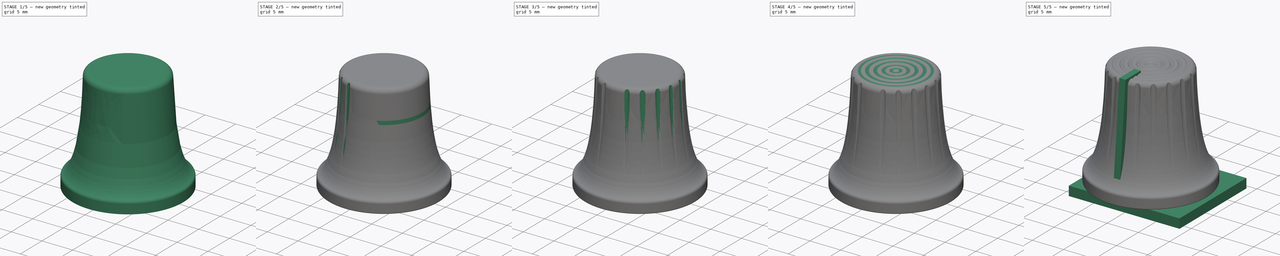
[diagram: build sequence overview — one tinted view per stage of 5, left to right]
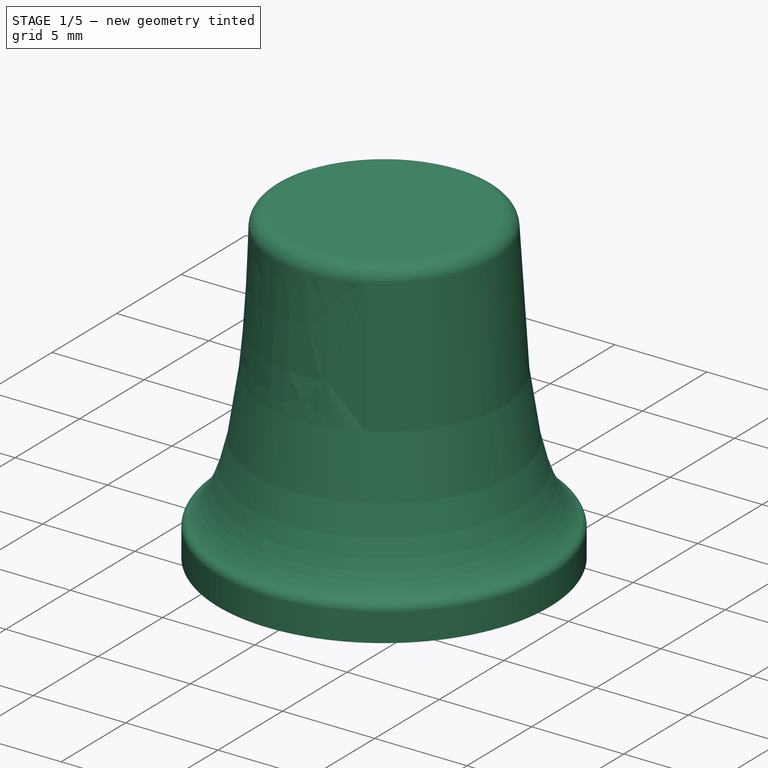
[diagram: stage 1 of 5 — iso view after this stage's code; geometry added in this stage tinted green]
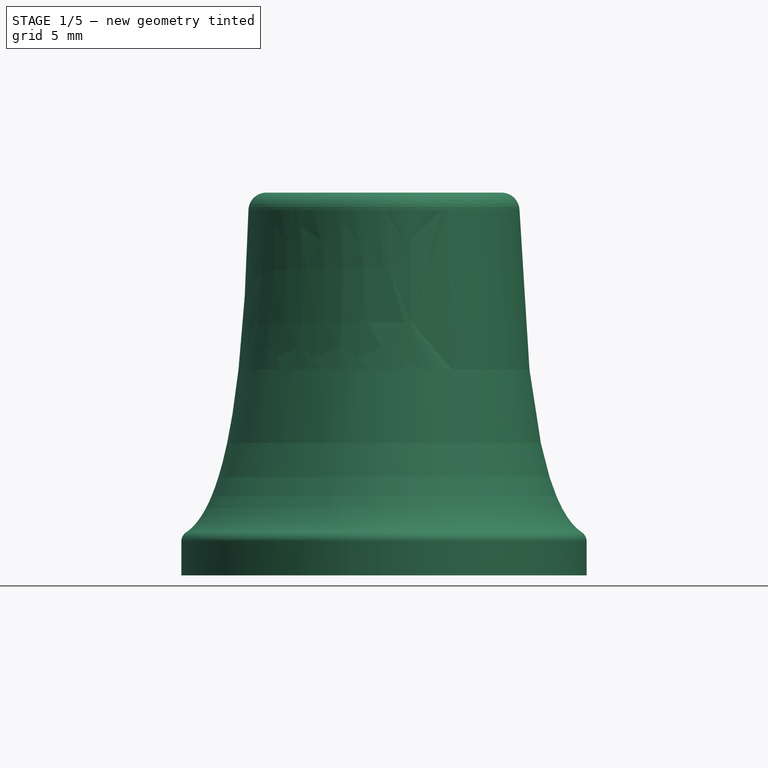
[diagram: stage 1 of 5 — front view after this stage's code; geometry added in this stage tinted green]
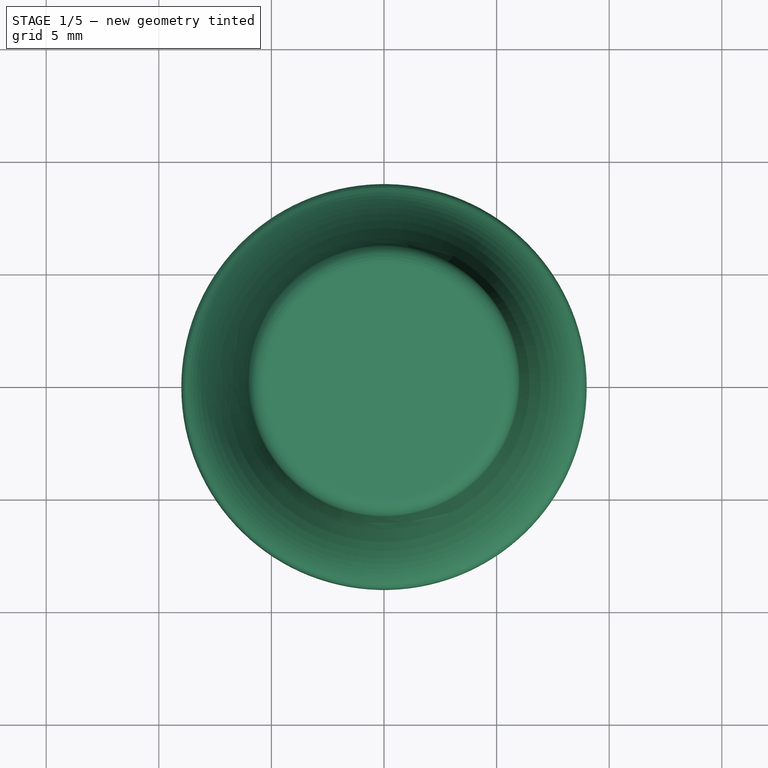
[diagram: stage 1 of 5 — top view after this stage's code; geometry added in this stage tinted green]
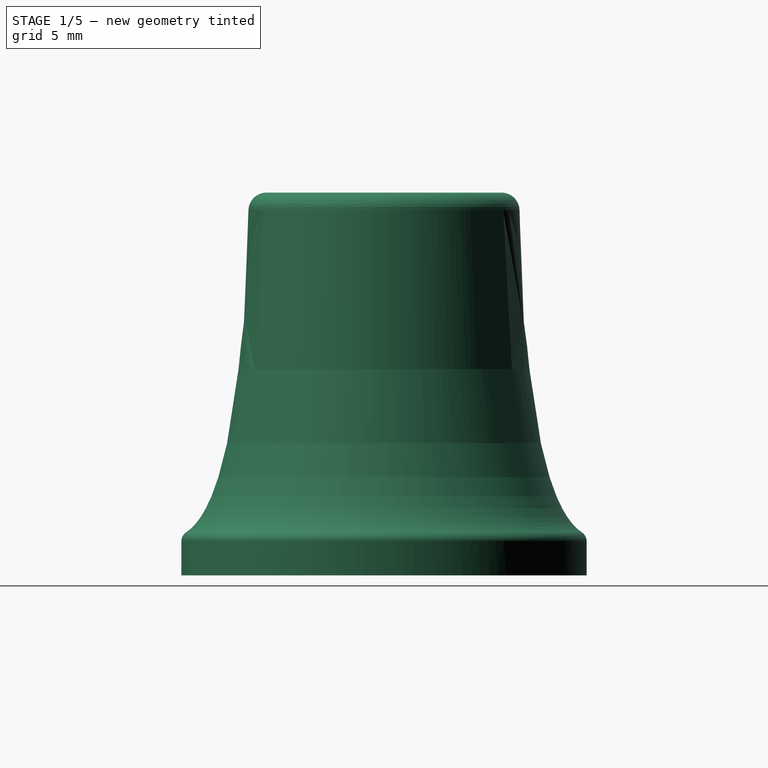
[diagram: stage 1 of 5 — right view after this stage's code; geometry added in this stage tinted green]
FCSTD DOCUMENT  (FreeCAD 0.19R19566 (Git))
Label: PotiCapV1_0
License: All rights reserved
LicenseURL: http://en.wikipedia.org/wiki/All_rights_reserved
objects: Sketcher::SketchObject×9, PartDesign::Pad×5, PartDesign::Plane×4, PartDesign::Fillet×4, PartDesign::Body×3, PartDesign::PolarPattern×3, Part::Feature×2, PartDesign::Groove×2, PartDesign::Revolution×1, PartDesign::Line×1, Part::MultiFuse×1
note: 43 computed .brp shape members not serialized (recipe doc carries the construction recipe); baked Part::Feature solids carry a one-line shape summary decoded from their .brp

FEATURE [Part::Feature] Part__Feature  label="RK09D1130-F20"
  Placement = pos=(0,0,6.5) rot=(1,0,0;3.14159rad)
  shape: bbox 11.45 x 12.65 x 25.3 mm, 332 faces (baked)
FEATURE [PartDesign::Plane] DatumPlane
  Length = 60
  MapMode = 2
  Placement = pos=(0,0,10) rot=(0,0,1;0rad)
  ResizeMode = 0
  Width = 60
FEATURE [PartDesign::Plane] DatumPlane001
  Length = 60
  MapMode = 2
  Placement = pos=(0,0,11.5) rot=(0,0,1;0rad)
  ResizeMode = 0
  Width = 60
FEATURE [Part::Feature] Part__Feature002  label="RK09D1130-F25"
  Placement = pos=(0,0,6.5) rot=(1,0,0;3.14159rad)
  shape: bbox 11.45 x 12.65 x 30.3 mm, 332 faces (baked)
FEATURE [Sketcher::SketchObject] Sketch
  MapMode = 5
  Placement = pos=(0,0,0) rot=(1,0,0;1.5708rad)
  Support = -> [XZ_Plane]
  sketch-geometry (20):
    g0: LineSegment [constr] StartX=0 StartY=28.8 StartZ=0 EndX=0 EndY=11.8 EndZ=0
    g1: LineSegment [constr] StartX=0 StartY=11.8 StartZ=0 EndX=-9 EndY=11.8 EndZ=0
    g2: LineSegment StartX=-9 StartY=11.8 StartZ=0 EndX=-9 EndY=13.6 EndZ=0
    g3: LineSegment StartX=0 StartY=28.8 StartZ=0 EndX=-6 EndY=28.8 EndZ=0
    g4: Circle [constr] CenterX=-6 CenterY=28.8 CenterZ=0 NormalX=0 NormalY=0 NormalZ=1 AngleXU=0 Radius=2
    g5: Circle [constr] CenterX=-6.3 CenterY=14.8 CenterZ=0 NormalX=0 NormalY=0 NormalZ=1 AngleXU=0 Radius=2
    g6: Circle [constr] CenterX=-9 CenterY=13.6 CenterZ=0 NormalX=0 NormalY=0 NormalZ=1 AngleXU=0 Radius=2
    g7: BSplineCurve PolesCount=3 KnotsCount=2 Degree=2 IsPeriodic=0
    g8: GeomPoint [constr] X=-6 Y=28.8 Z=0
    g9: GeomPoint [constr] X=-9 Y=13.6 Z=0
    g10: Circle [constr] CenterX=-4.6 CenterY=27.4 CenterZ=0 NormalX=0 NormalY=0 NormalZ=1 AngleXU=0 Radius=2
    g11: Circle [constr] CenterX=-5.087 CenterY=14.851 CenterZ=0 NormalX=0 NormalY=0 NormalZ=1 AngleXU=0 Radius=2
    g12: Circle [constr] CenterX=-7.5 CenterY=13.2 CenterZ=0 NormalX=0 NormalY=0 NormalZ=1 AngleXU=0 Radius=2
    g13: BSplineCurve PolesCount=3 KnotsCount=2 Degree=2 IsPeriodic=0
    g14: GeomPoint [constr] X=-4.6 Y=27.4 Z=0
    g15: GeomPoint [constr] X=-7.5 Y=13.2 Z=0
    g16: LineSegment StartX=-4.6 StartY=27.4 StartZ=0 EndX=0 EndY=27.4 EndZ=0
    g17: LineSegment StartX=-7.5 StartY=13.2 StartZ=0 EndX=-7.5 EndY=11.8 EndZ=0
    g18: LineSegment StartX=-9 StartY=11.8 StartZ=0 EndX=-7.5 EndY=11.8 EndZ=0
    g19: LineSegment StartX=0 StartY=28.8 StartZ=0 EndX=0 EndY=27.4 EndZ=0
  constraints (49):
    c: PointOnObject(g0,g-2)
    c: PointOnObject(g0,g-2)
    c: Coincident(g0,g1)
    c: Horizontal(g1)
    c: Coincident(g1,g2)
    c: Coincident(g0,g3)
    c: Horizontal(g3)
    c: DistanceY(g0,g0) = 17
    c: DistanceX(g1,g1) = 9
    c: DistanceY(g-1,g0) = 11.8
    c: Vertical(g2)
    c: Coincident(g7,g3)
    c: Radius(g4) = 2
    c: Equal(g4,g5)
    c: Equal(g4,g6)
    c: Coincident(g7,g2)
    c: InternalAlignment(g4,g7)
    c: InternalAlignment(g5,g7)
    c: InternalAlignment(g6,g7)
    c: InternalAlignment(g8,g7)
    c: InternalAlignment(g9,g7)
    c: DistanceY(g2,g2) = 1.8
    c: DistanceY(g0,g5) = 3
    c: DistanceX(g3,g3) = 6
    c: DistanceX(g5,g0) = 6.3
    c: Radius(g10) = 2
    c: Equal(g10,g11)
    c: Equal(g10,g12)
    c: InternalAlignment(g10,g13)
    c: InternalAlignment(g11,g13)
    c: InternalAlignment(g12,g13)
    c: InternalAlignment(g14,g13)
    c: InternalAlignment(g15,g13)
    c: Horizontal(g16)
    c: Coincident(g17,g13)
    c: Coincident(g18,g2)
    c: Coincident(g18,g17)
    c: Coincident(g19,g3)
    c: Coincident(g16,g19)
    c: Vertical(g19)
    c: Horizontal(g18)
    c: DistanceX(g18,g18) = 1.5
    c: DistanceY(g17,g17) = 1.4
    c: Vertical(g17)
    c: DistanceX(g3,g13) = 1.4
    c: DistanceY(g19,g19) = 1.4
    c: DistanceX(g11,g0) = 5.087
    c: DistanceY(g0,g11) = 3.051
    c: Coincident(g16,g13)
FEATURE [PartDesign::Revolution] Revolution
  Angle = 360
  Axis = (0,-2e-16,1)
  Base = (0,0,0)
  Placement = pos=(0,0,0) rot=(1,0,0;1.5708rad)
  Profile = -> Sketch
  ReferenceAxis = -> Sketch [V_Axis]
FEATURE [PartDesign::Fillet] Fillet
  Base = -> Revolution [Edge4]
  BaseFeature = -> Revolution
  Placement = pos=(0,0,0) rot=(1,0,0;1.5708rad)
  Radius = 0.8
FEATURE [PartDesign::Fillet] Fillet001
  Base = -> Fillet [Edge3]
  BaseFeature = -> Fillet
  Placement = pos=(0,0,0) rot=(1,0,0;1.5708rad)
  Radius = 0.5
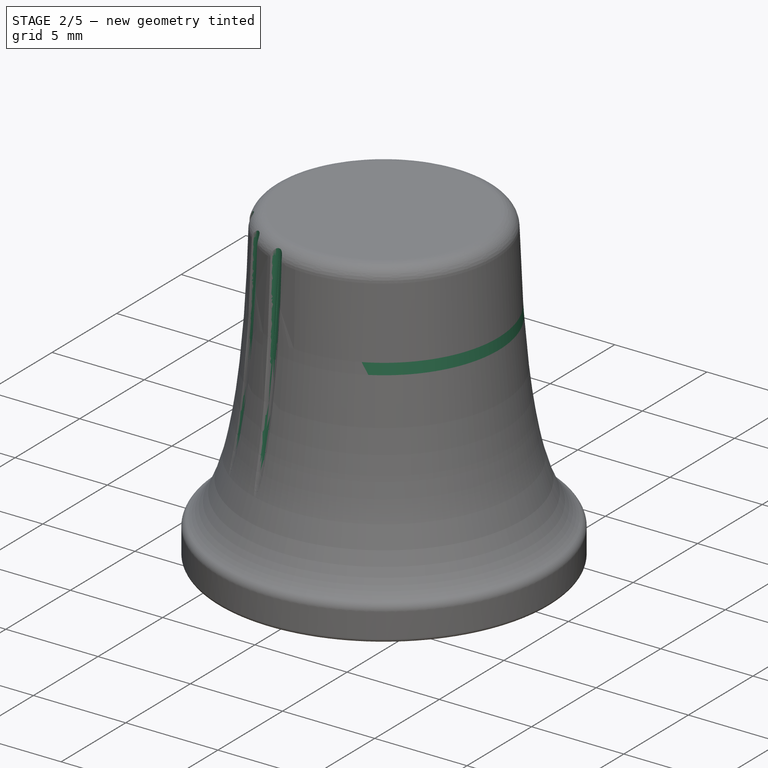
[diagram: stage 2 of 5 — iso view after this stage's code; geometry added in this stage tinted green]
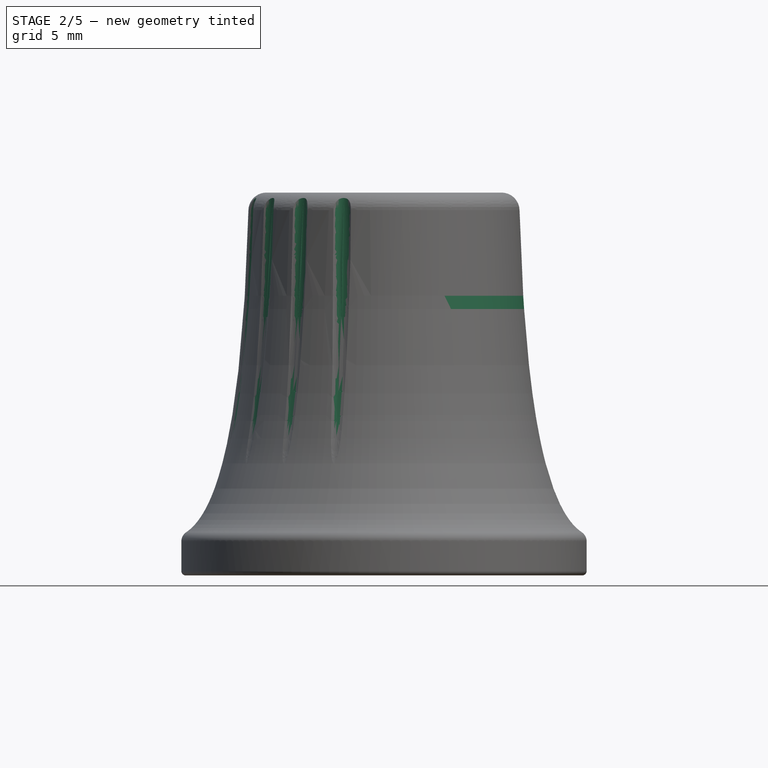
[diagram: stage 2 of 5 — front view after this stage's code; geometry added in this stage tinted green]
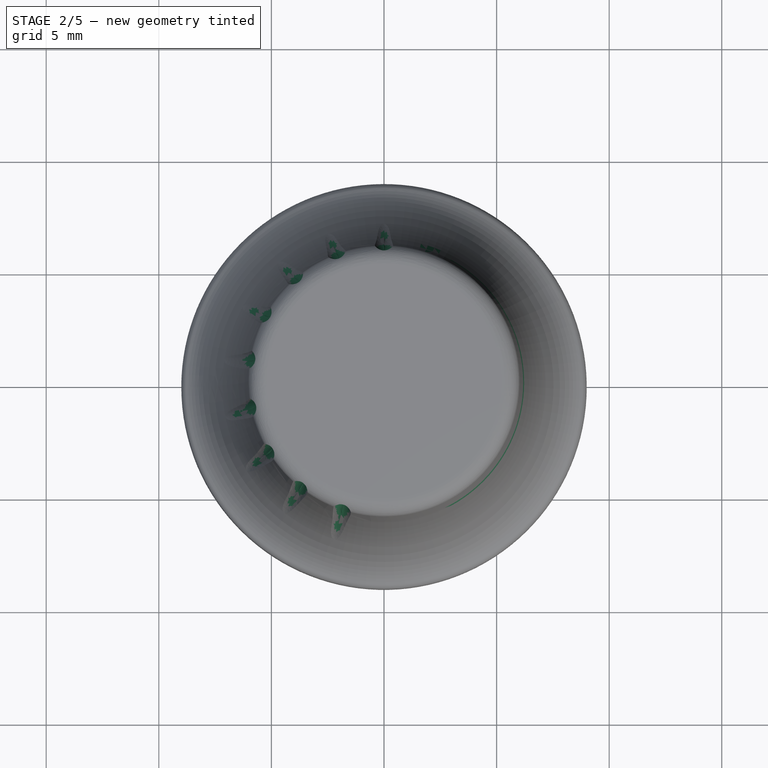
[diagram: stage 2 of 5 — top view after this stage's code; geometry added in this stage tinted green]
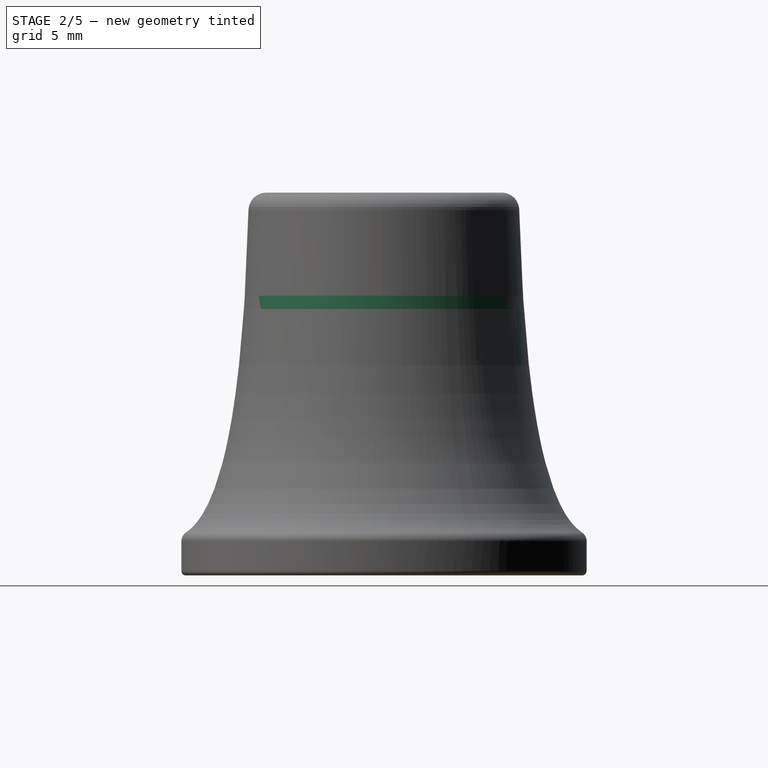
[diagram: stage 2 of 5 — right view after this stage's code; geometry added in this stage tinted green]
FEATURE [PartDesign::Fillet] Fillet002
  Base = -> Fillet001 [Edge9]
  BaseFeature = -> Fillet001
  Placement = pos=(0,0,0) rot=(1,0,0;1.5708rad)
  Radius = 0.2
FEATURE [PartDesign::Body] Body002  label="dot"
  Group = -> [Sketch002,Pad001]
  Origin = -> Origin002
  Tip = -> Pad001
FEATURE [PartDesign::Line] DatumLine
  AttacherType = Attacher::AttachEngineLine
  AttachmentOffset = pos=(0,10.2,0) rot=(1,0,0;0.136136rad)
  MapMode = 42
  Placement = pos=(2.65133e-07,10.2,-3e-15) rot=(1,0,0;0.136136rad)
  Support = -> [Fillet002]
FEATURE [PartDesign::Plane] DatumPlane003
  Length = 68.7728
  MapMode = 4
  Placement = pos=(2.65133e-07,10.2,-3.1e-15) rot=(0.60182,0.525001,0.60182;2.1747rad)
  ResizeMode = 0
  Support = -> [DatumLine]
  Width = 72.877
FEATURE [Sketcher::SketchObject] Sketch003
  MapMode = 5
  Placement = pos=(2.65133e-07,10.2,-3.1e-15) rot=(0.60182,0.525001,0.60182;2.1747rad)
  Support = -> [DatumPlane003]
  sketch-geometry (8):
    g0: LineSegment StartX=-0.45 StartY=29.4 StartZ=0 EndX=0 EndY=29.4 EndZ=0
    g1: LineSegment StartX=0 StartY=15.6 StartZ=0 EndX=0 EndY=29.4 EndZ=0
    g2: Circle [constr] CenterX=-0.45 CenterY=29.4 CenterZ=0 NormalX=0 NormalY=0 NormalZ=1 AngleXU=0 Radius=1.7
    g3: Circle [constr] CenterX=-1.6 CenterY=16 CenterZ=0 NormalX=0 NormalY=0 NormalZ=1 AngleXU=0 Radius=1.7
    g4: Circle [constr] CenterX=0 CenterY=15.6 CenterZ=0 NormalX=0 NormalY=0 NormalZ=1 AngleXU=0 Radius=1.7
    g5: BSplineCurve PolesCount=3 KnotsCount=2 Degree=2 IsPeriodic=0
    g6: GeomPoint [constr] X=-0.45 Y=29.4 Z=0
    g7: GeomPoint [constr] X=0 Y=15.6 Z=0
  constraints (19):
    c: PointOnObject(g0,g-2)
    c: Horizontal(g0)
    c: Coincident(g1,g0)
    c: Coincident(g5,g0)
    c: Radius(g2) = 1.7
    c: Equal(g2,g3)
    c: Equal(g2,g4)
    c: Coincident(g5,g1)
    c: InternalAlignment(g2,g5)
    c: InternalAlignment(g3,g5)
    c: InternalAlignment(g4,g5)
    c: InternalAlignment(g6,g5)
    c: InternalAlignment(g7,g5)
    c: DistanceY(g-1,g1) = 15.6
    c: DistanceY(g-1,g3) = 16
    c: DistanceY(g-1,g0) = 29.4
    c: DistanceX(g0,g0) = 0.45
    c: DistanceX(g3,g-1) = 1.6
    c: PointOnObject(g1,g-2)
FEATURE [PartDesign::Groove] Groove
  Angle = 360
  Axis = (7.62494e-11,-0.135716,0.990748)
  Base = (2.65133e-07,10.2,-3.1e-15)
  BaseFeature = -> Fillet002
  Placement = pos=(0,0,0) rot=(1,0,0;1.5708rad)
  Profile = -> Sketch003
  ReferenceAxis = -> Sketch003 [V_Axis]
  Reversed = true
FEATURE [PartDesign::PolarPattern] PolarPattern
  Angle = 162
  Axis = -> Z_Axis
  BaseFeature = -> Groove
  Occurrences = 9
  Originals = -> [Groove]
  Placement = pos=(0,0,0) rot=(1,0,0;1.5708rad)
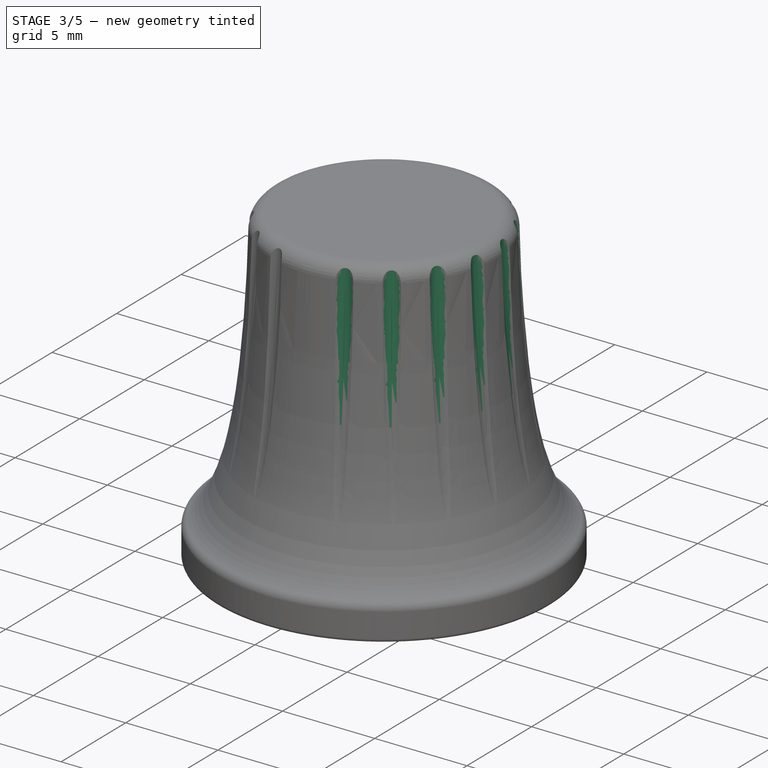
[diagram: stage 3 of 5 — iso view after this stage's code; geometry added in this stage tinted green]
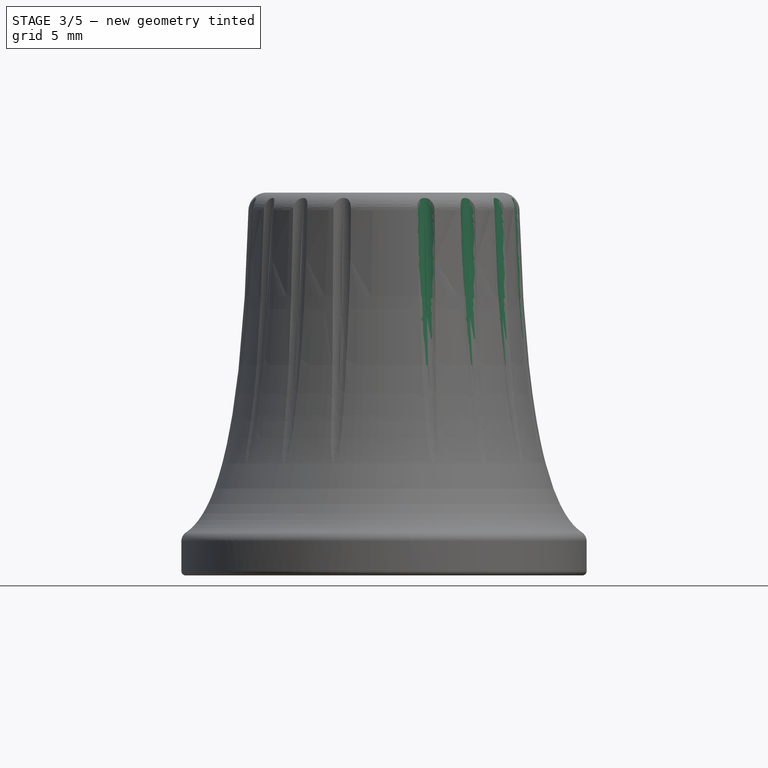
[diagram: stage 3 of 5 — front view after this stage's code; geometry added in this stage tinted green]
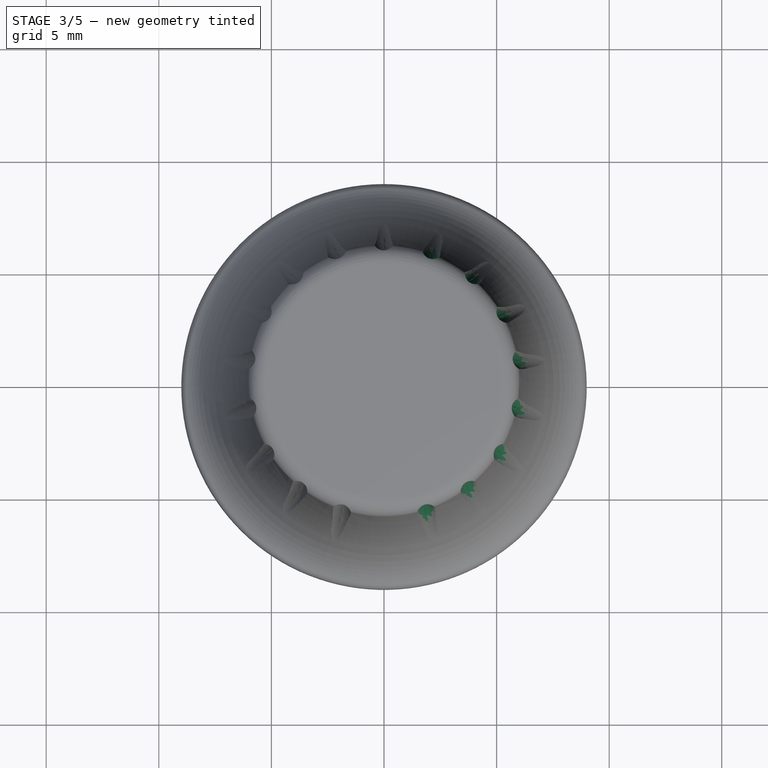
[diagram: stage 3 of 5 — top view after this stage's code; geometry added in this stage tinted green]
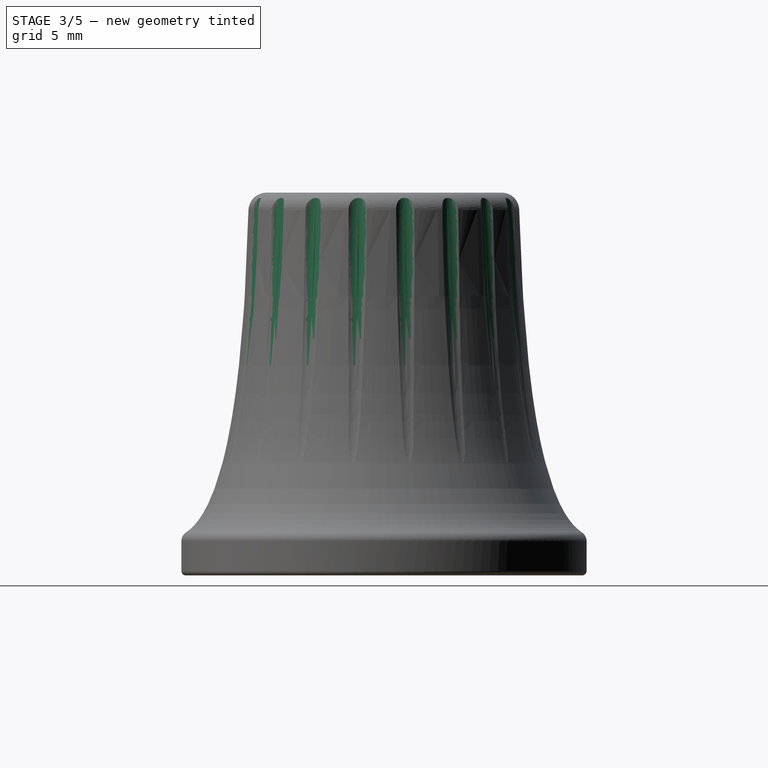
[diagram: stage 3 of 5 — right view after this stage's code; geometry added in this stage tinted green]
FEATURE [PartDesign::PolarPattern] PolarPattern001
  Angle = 162
  Axis = -> Z_Axis
  BaseFeature = -> PolarPattern
  Occurrences = 9
  Originals = -> [Groove]
  Placement = pos=(0,0,0) rot=(1,0,0;1.5708rad)
  Reversed = true
FEATURE [Sketcher::SketchObject] Sketch004
  MapMode = 5
  Placement = pos=(0,0,27.4) rot=(1,0,0;3.14159rad)
  Support = -> [Revolution]
  sketch-geometry (10):
    g0: ArcOfCircle CenterX=0 CenterY=0 CenterZ=0 NormalX=0 NormalY=0 NormalZ=1 AngleXU=0 Radius=4.025 StartAngle=1.69534 EndAngle=4.58784
    g1: ArcOfCircle CenterX=0 CenterY=0 CenterZ=0 NormalX=0 NormalY=0 NormalZ=1 AngleXU=0 Radius=4.025 StartAngle=4.83693 EndAngle=7.72944
    g2: ArcOfCircle CenterX=0 CenterY=0 CenterZ=0 NormalX=0 NormalY=0 NormalZ=1 AngleXU=0 Radius=3.025 StartAngle=1.73685 EndAngle=4.54634
    g3: ArcOfCircle CenterX=0 CenterY=0 CenterZ=0 NormalX=0 NormalY=0 NormalZ=1 AngleXU=0 Radius=3.025 StartAngle=4.87844 EndAngle=7.68793
    g4: LineSegment StartX=-0.5 StartY=3.99382 StartZ=0 EndX=-0.5 EndY=2.98339 EndZ=0
    g5: LineSegment StartX=0.5 StartY=3.99382 StartZ=0 EndX=0.5 EndY=2.98339 EndZ=0
    g6: LineSegment StartX=-0.5 StartY=-2.98339 StartZ=0 EndX=-0.5 EndY=-3.99382 EndZ=0
    g7: LineSegment StartX=0.5 StartY=-2.98339 StartZ=0 EndX=0.5 EndY=-3.99382 EndZ=0
    g8: LineSegment [constr] StartX=-0.5 StartY=3.99382 StartZ=0 EndX=0.5 EndY=3.99382 EndZ=0
    g9: LineSegment [constr] StartX=-0.5 StartY=-3.99382 StartZ=0 EndX=0.5 EndY=-3.99382 EndZ=0
  constraints (28):
    c: Coincident(g0,g-1)
    c: Coincident(g1,g0)
    c: Coincident(g2,g0)
    c: Coincident(g3,g0)
    c: Diameter(g2) = 6.05
    c: Diameter(g0) = 8.05
    c: Vertical(g4)
    c: Vertical(g5)
    c: Vertical(g6)
    c: Vertical(g7)
    c: Coincident(g4,g0)
    c: Coincident(g4,g2)
    c: Equal(g0,g1)
    c: Equal(g2,g3)
    c: Coincident(g6,g2)
    c: Coincident(g6,g0)
    c: Coincident(g1,g7)
    c: Coincident(g7,g3)
    c: Coincident(g1,g5)
    c: Coincident(g5,g3)
    c: Coincident(g8,g0)
    c: Coincident(g8,g1)
    c: Coincident(g9,g0)
    c: Coincident(g9,g1)
    c: Horizontal(g9)
    c: Horizontal(g8)
    c: DistanceX(g8,g8) = 1
    c: Equal(g8,g9)
FEATURE [PartDesign::Pad] Pad002
  BaseFeature = -> PolarPattern001
  Length = 15.2
  Length2 = 100
  Placement = pos=(0,0,0) rot=(1,0,0;1.5708rad)
  Profile = -> Sketch004
  Type = 0
FEATURE [Sketcher::SketchObject] Sketch005
  MapMode = 5
  Placement = pos=(0,0,27.4) rot=(1,0,0;3.14159rad)
  Support = -> [Pad002]
  sketch-geometry (8):
    g0: ArcOfCircle CenterX=0 CenterY=0 CenterZ=0 NormalX=0 NormalY=0 NormalZ=1 AngleXU=0 Radius=3.025 StartAngle=3.66043 EndAngle=4.54634
    g1: ArcOfCircle CenterX=0 CenterY=0 CenterZ=0 NormalX=0 NormalY=0 NormalZ=1 AngleXU=0 Radius=3.025 StartAngle=4.87844 EndAngle=5.76435
    g2: ArcOfCircle CenterX=0 CenterY=0 CenterZ=0 NormalX=0 NormalY=0 NormalZ=1 AngleXU=0 Radius=4.025 StartAngle=4.58784 EndAngle=4.83693
    g3: LineSegment StartX=-0.5 StartY=-2.98339 StartZ=0 EndX=-0.5 EndY=-3.99382 EndZ=0
    g4: LineSegment StartX=0.5 StartY=-2.98339 StartZ=0 EndX=0.5 EndY=-3.99382 EndZ=0
    g5: LineSegment StartX=-2.6269 StartY=-1.5 StartZ=0 EndX=2.6269 EndY=-1.5 EndZ=0
    g6: LineSegment [constr] StartX=-0.5 StartY=-2.98339 StartZ=0 EndX=0 EndY=-2.98339 EndZ=0
    g7: LineSegment [constr] StartX=0 StartY=-2.98339 StartZ=0 EndX=0.5 EndY=-2.98339 EndZ=0
  constraints (23):
    c: Coincident(g0,g-1)
    c: Coincident(g1,g0)
    c: Diameter(g1) = 6.05
    c: Equal(g0,g1)
    c: Coincident(g2,g0)
    c: Diameter(g2) = 8.05
    c: Coincident(g3,g0)
    c: Coincident(g3,g2)
    c: Vertical(g3)
    c: Coincident(g4,g1)
    c: Coincident(g4,g2)
    c: Vertical(g4)
    c: Coincident(g5,g0)
    c: Coincident(g5,g1)
    c: Horizontal(g5)
    c: DistanceY(g1,g0) = 1.5
    c: DistanceX(g2,g2) = 1
    c: Coincident(g6,g7)
    c: Horizontal(g7)
    c: Equal(g6,g7)
    c: PointOnObject(g6,g-2)
    c: Coincident(g7,g1)
    c: Coincident(g0,g6)
FEATURE [PartDesign::Pad] Pad003
  BaseFeature = -> Pad002
  Length = 14.4
  Length2 = 100
  Placement = pos=(0,0,0) rot=(1,0,0;1.5708rad)
  Profile = -> Sketch005
  Type = 0
FEATURE [Sketcher::SketchObject] Sketch006
  MapMode = 5
  Placement = pos=(0,0,0) rot=(0.57735,0.57735,0.57735;2.0944rad)
  Support = -> [YZ_Plane]
  sketch-geometry (5):
    g0: LineSegment StartX=7.3 StartY=13.7 StartZ=0 EndX=3.5 EndY=13.7 EndZ=0
    g1: LineSegment StartX=3.5 StartY=13.7 StartZ=0 EndX=3.5 EndY=27.7 EndZ=0
    g2: LineSegment StartX=3.5 StartY=27.7 StartZ=0 EndX=4.9 EndY=27.7 EndZ=0
    g3: LineSegment StartX=4.9 StartY=27.7 StartZ=0 EndX=5.40777 EndY=21.8961 EndZ=0
    g4: LineSegment StartX=5.40777 StartY=21.8961 StartZ=0 EndX=7.3 EndY=13.7 EndZ=0
  constraints (15):
    c: Horizontal(g0)
    c: Coincident(g0,g1)
    c: Vertical(g1)
    c: Coincident(g1,g2)
    c: Horizontal(g2)
    c: DistanceX(g-1,g0) = 3.5
    c: DistanceY(g-1,g1) = 27.7
    c: DistanceY(g1,g1) = 14
    c: Coincident(g2,g3)
    c: Coincident(g3,g4)
    c: Coincident(g4,g0)
    c: DistanceX(g0,g0) = 3.8
    c: DistanceX(g2,g2) = 1.4
    c: Angle(g2,g3) = 1.65806
    c: Angle(g4,g0) = 1.3439
FEATURE [PartDesign::Pad] Pad004
  BaseFeature = -> Pad003
  Length = 0.8
  Length2 = 100
  Midplane = true
  Placement = pos=(0,0,0) rot=(1,0,0;1.5708rad)
  Profile = -> Sketch006
  Type = 0
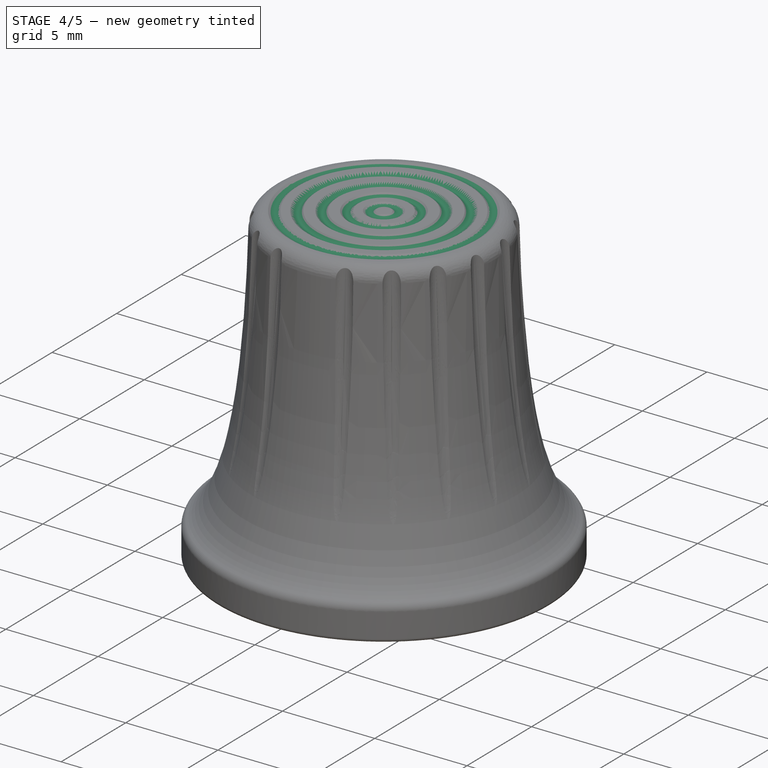
[diagram: stage 4 of 5 — iso view after this stage's code; geometry added in this stage tinted green]
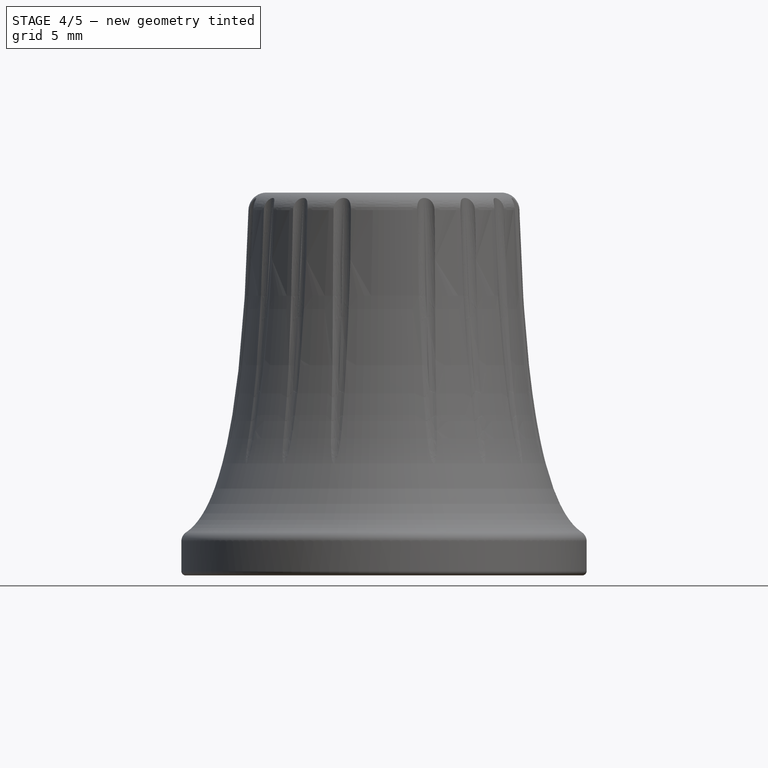
[diagram: stage 4 of 5 — front view after this stage's code; geometry added in this stage tinted green]
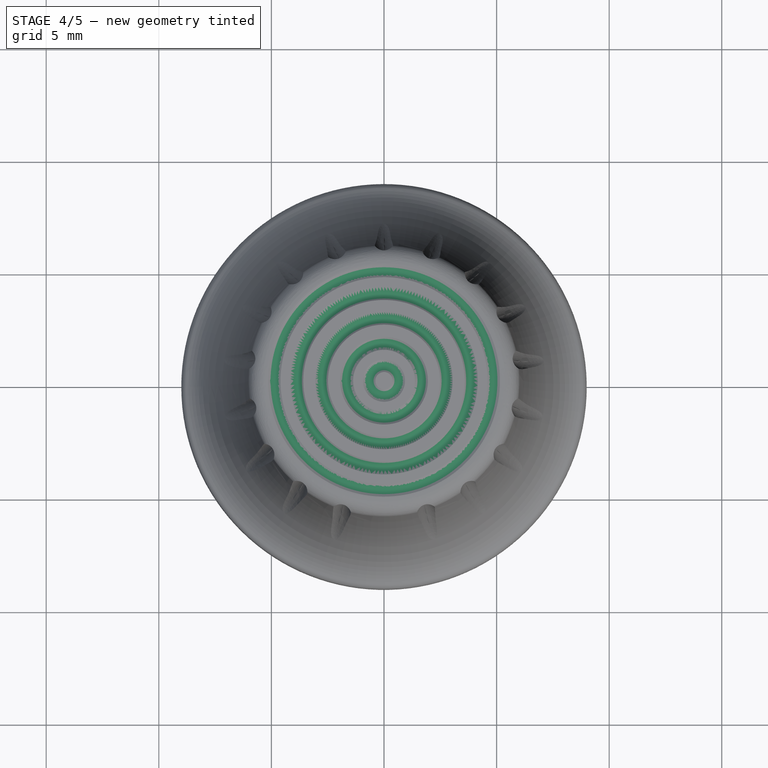
[diagram: stage 4 of 5 — top view after this stage's code; geometry added in this stage tinted green]
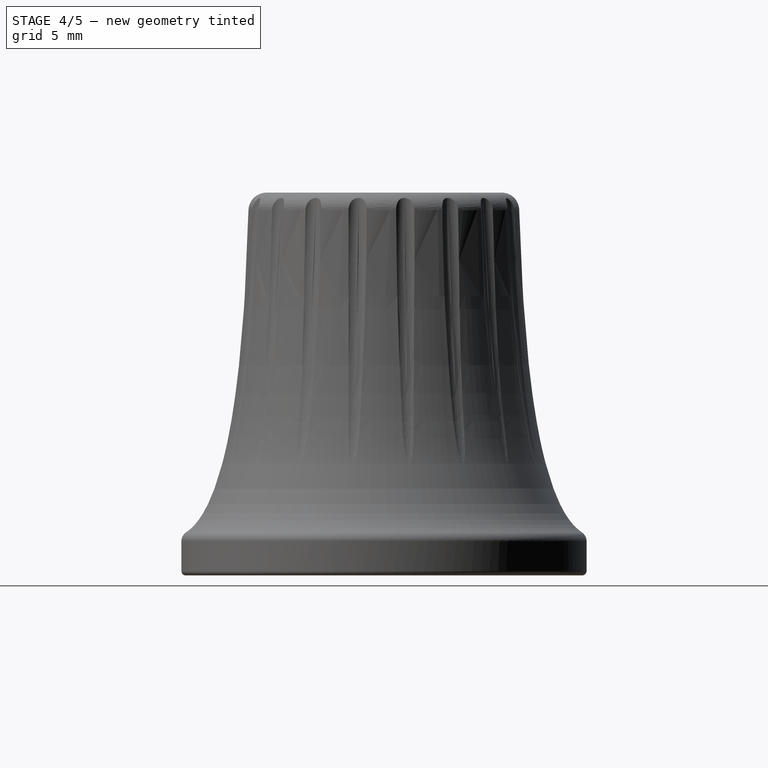
[diagram: stage 4 of 5 — right view after this stage's code; geometry added in this stage tinted green]
FEATURE [PartDesign::PolarPattern] PolarPattern002
  Angle = 360
  Axis = -> Z_Axis
  BaseFeature = -> Pad004
  Occurrences = 7
  Originals = -> [Pad004]
  Placement = pos=(0,0,0) rot=(1,0,0;1.5708rad)
FEATURE [PartDesign::Fillet] Fillet003
  Base = -> PolarPattern002 [Edge119,Edge153,Edge117,Edge148,Edge143,Edge209,Edge141,Edge204,Edge201,Edge139,Edge137,Edge196,Edge187,Edge135,Edge182,Edge133,Edge134,Edge179,Edge131,Edge130,Edge174,Edge176,Edge184,Edge171,Edge127,Edge126,Edge125,Edge168,Edge166,Edge142,Edge138,Edge198,Edge206,Edge129,Edge150,Edge118,Edge123,Edge121,Edge122]
  BaseFeature = -> PolarPattern002
  Placement = pos=(0,0,0) rot=(1,0,0;1.5708rad)
  Radius = 0.2
FEATURE [Sketcher::SketchObject] Sketch007
  MapMode = 5
  Support = -> [XY_Plane]
FEATURE [Sketcher::SketchObject] Sketch008
  MapMode = 5
  Placement = pos=(0,0,0) rot=(1,0,0;1.5708rad)
  Support = -> [XZ_Plane]
  sketch-geometry (35):
    g0: LineSegment StartX=0 StartY=29.3 StartZ=0 EndX=0 EndY=29.8 EndZ=0
    g1: LineSegment StartX=0 StartY=29.8 StartZ=0 EndX=-5.6 EndY=29.8 EndZ=0
    g2: LineSegment StartX=-5.6 StartY=29.8 StartZ=0 EndX=-5.6 EndY=29.3 EndZ=0
    g3-g13: Circle [constr] x11 (B-spline internal-alignment scaffolding for g14; pole/knot coordinates omitted)
    g14: BSplineCurve PolesCount=11 KnotsCount=9 Degree=3 IsPeriodic=0
    g15-g23: GeomPoint [constr] x9 (B-spline internal-alignment scaffolding for g14; pole/knot coordinates omitted)
    g24: LineSegment [constr] StartX=-5.6 StartY=29.3 StartZ=0 EndX=-4.48 EndY=29.3 EndZ=0
    g25: LineSegment [constr] StartX=-4.48 StartY=29.3 StartZ=0 EndX=-3.36 EndY=29.3 EndZ=0
    g26: LineSegment [constr] StartX=-3.36 StartY=29.3 StartZ=0 EndX=-2.24 EndY=29.3 EndZ=0
    g27: LineSegment [constr] StartX=-2.24 StartY=29.3 StartZ=0 EndX=-1.12 EndY=29.3 EndZ=0
    g28: LineSegment [constr] StartX=-1.12 StartY=29.3 StartZ=0 EndX=0 EndY=29.3 EndZ=0
    g29: LineSegment [constr] StartX=-0.5825 StartY=28.3 StartZ=0 EndX=-1.6575 EndY=28.3 EndZ=0
    g30: LineSegment [constr] StartX=-1.6575 StartY=28.3 StartZ=0 EndX=-2.7325 EndY=28.3 EndZ=0
    g31: LineSegment [constr] StartX=-2.7325 StartY=28.3 StartZ=0 EndX=-3.8075 EndY=28.3 EndZ=0
    g32: LineSegment [constr] StartX=-3.8075 StartY=28.3 StartZ=0 EndX=-4.8825 EndY=28.3 EndZ=0
    g33: LineSegment [constr] StartX=-0.5825 StartY=28.3 StartZ=0 EndX=-1.12 EndY=29.3 EndZ=0
    g34: LineSegment [constr] StartX=-1.12 StartY=29.3 StartZ=0 EndX=-1.6575 EndY=28.3 EndZ=0
  constraints (56):
    c: PointOnObject(g0,g-2)
    c: Vertical(g0)
    c: Coincident(g0,g1)
    c: Horizontal(g1)
    c: Coincident(g1,g2)
    c: Vertical(g2)
    c: Coincident(g14,g2)
    c: Radius(g3) = 0.09
    c: Equal(g3, g4-g13) x10
    c: Coincident(g14,g0)
    c: InternalAlignment(g3-g13 -> g14) x11
    c: InternalAlignment(g15-g23 -> g14) x9
    c: Coincident(g24,g2)
    c: Coincident(g24,g25)
    c: Coincident(g25,g7)
    c: Coincident(g25,g26)
    c: Coincident(g26,g9)
    c: Horizontal(g26)
    c: Coincident(g26,g27)
    c: Coincident(g27,g11)
    c: Coincident(g27,g28)
    c: Horizontal(g28)
    c: Horizontal(g27)
    c: Horizontal(g25)
    c: Equal(g25,g24)
    c: Equal(g24,g26)
    c: Equal(g26,g27)
    c: Equal(g27,g28)
    c: Horizontal(g24)
    c: Coincident(g5,g24)
    c: Coincident(g29,g12)
    c: Horizontal(g29)
    c: Coincident(g29,g30)
    c: Coincident(g30,g31)
    c: Horizontal(g31)
    c: Coincident(g31,g32)
    c: Coincident(g4,g32)
    c: Coincident(g6,g31)
    c: Coincident(g8,g30)
    c: Coincident(g29,g10)
    c: Equal(g30,g31)
    c: Equal(g31,g32)
    c: Equal(g32,g29)
    c: Horizontal(g32)
    c: Horizontal(g30)
    c: DistanceY(g12,g11) = 1
    c: Coincident(g28,g0)
    c: DistanceX(g1,g1) = 5.6
    c: Coincident(g33,g12)
    c: Coincident(g33,g11)
    c: Coincident(g33,g34)
    c: Coincident(g34,g10)
    c: Equal(g34,g33)
    c: DistanceX(g4,g12) = 4.3
    c: DistanceY(g-1,g0) = 29.3
    c: DistanceY(g0,g0) = 0.5
FEATURE [PartDesign::Groove] Groove001
  Angle = 360
  Axis = (0,-2e-16,1)
  Base = (0,0,0)
  BaseFeature = -> Fillet003
  Placement = pos=(0,0,0) rot=(1,0,0;1.5708rad)
  Profile = -> Sketch008
  ReferenceAxis = -> Sketch008 [V_Axis]
  Reversed = true
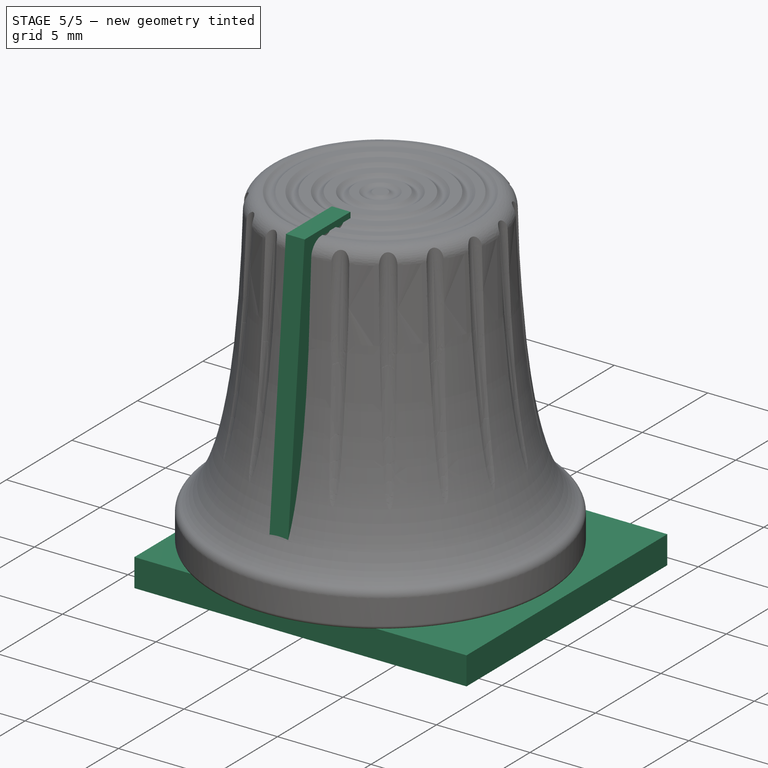
[diagram: stage 5 of 5 — iso view after this stage's code; geometry added in this stage tinted green]
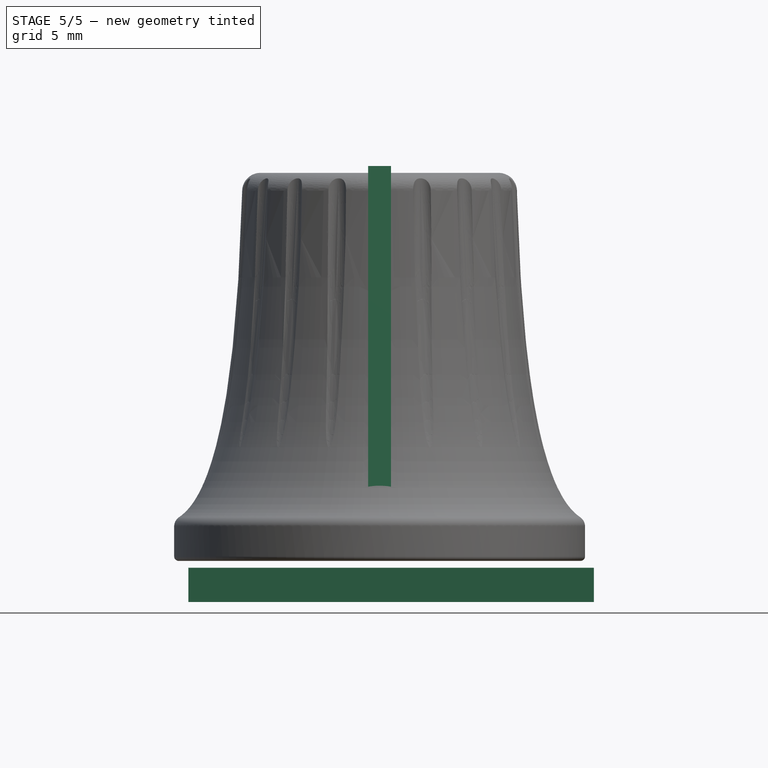
[diagram: stage 5 of 5 — front view after this stage's code; geometry added in this stage tinted green]
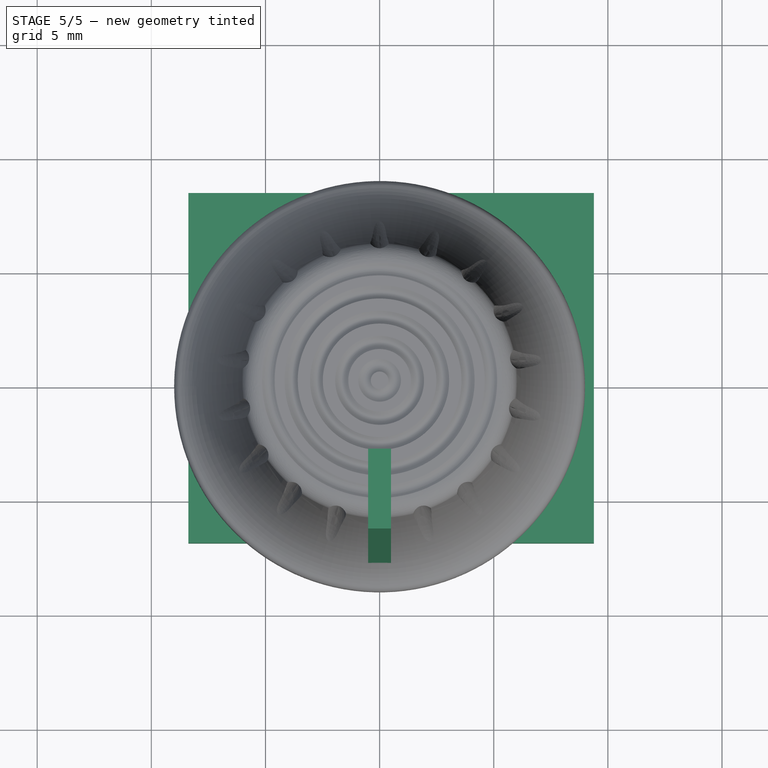
[diagram: stage 5 of 5 — top view after this stage's code; geometry added in this stage tinted green]
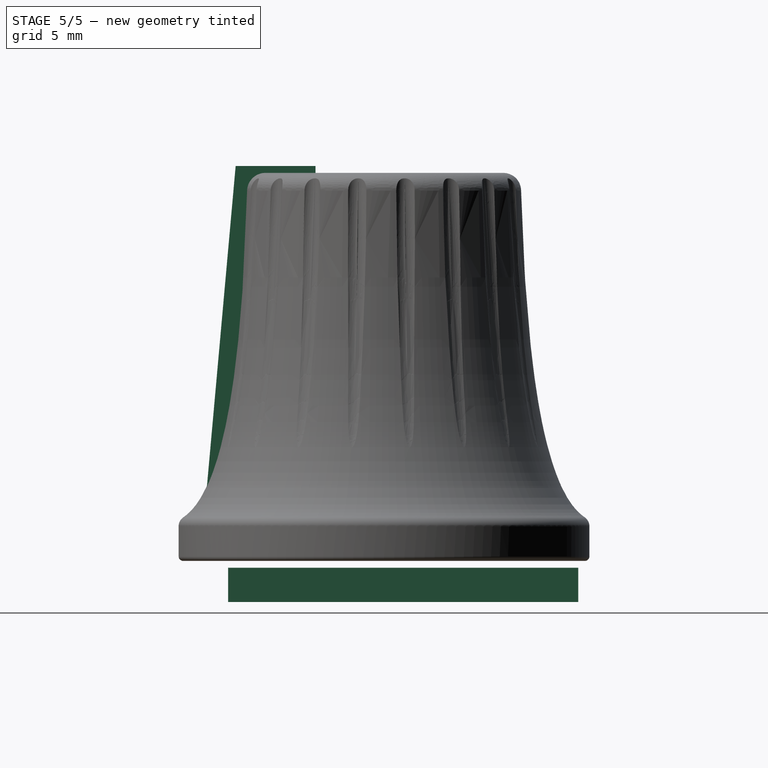
[diagram: stage 5 of 5 — right view after this stage's code; geometry added in this stage tinted green]
FEATURE [PartDesign::Plane] DatumPlane002
  Length = 60
  MapMode = 2
  Placement = pos=(0,0,10) rot=(0,0,1;0rad)
  ResizeMode = 0
  Width = 24
FEATURE [Sketcher::SketchObject] Sketch001
  MapMode = 5
  Placement = pos=(0,0,10) rot=(0,0,1;0rad)
  Support = -> [DatumPlane002]
  sketch-geometry (5):
    g0: LineSegment StartX=-8.37606 StartY=8.50644 StartZ=0 EndX=9.38573 EndY=8.50644 EndZ=0
    g1: LineSegment StartX=9.38573 StartY=8.50644 StartZ=0 EndX=9.38573 EndY=-6.82829 EndZ=0
    g2: LineSegment StartX=9.38573 StartY=-6.82829 StartZ=0 EndX=-8.37606 EndY=-6.82829 EndZ=0
    g3: LineSegment StartX=-8.37606 StartY=-6.82829 StartZ=0 EndX=-8.37606 EndY=8.50644 EndZ=0
    g4: Circle CenterX=0 CenterY=0 CenterZ=0 NormalX=0 NormalY=0 NormalZ=1 AngleXU=0 Radius=3.75
  constraints (10):
    c: Coincident(g0,g1)
    c: Coincident(g1,g2)
    c: Coincident(g2,g3)
    c: Coincident(g3,g0)
    c: Horizontal(g0)
    c: Horizontal(g2)
    c: Vertical(g1)
    c: Vertical(g3)
    c: Diameter(g4) = 7.5
    c: Coincident(g4,g-1)
FEATURE [PartDesign::Pad] Pad
  Length = 1.5
  Length2 = 100
  Placement = pos=(0,0,10) rot=(0,0,1;0rad)
  Profile = -> Sketch001
  Type = 0
FEATURE [PartDesign::Body] Body001  label="Faceplate"
  Group = -> [DatumPlane002,Sketch001,Pad]
  Origin = -> Origin001
  Tip = -> Pad
FEATURE [Sketcher::SketchObject] Sketch002
  MapMode = 5
  Placement = pos=(0,0,0) rot=(0.57735,0.57735,0.57735;2.0944rad)
  Support = -> [YZ_Plane002]
  sketch-geometry (6):
    g0: LineSegment StartX=-3 StartY=29.1 StartZ=0 EndX=-6.5 EndY=29.1 EndZ=0
    g1: LineSegment StartX=-6.5 StartY=29.1 StartZ=0 EndX=-7.8 EndY=14.6 EndZ=0
    g2: LineSegment StartX=-7.8 StartY=14.6 StartZ=0 EndX=-6.5 EndY=14.6 EndZ=0
    g3: LineSegment StartX=-6.5 StartY=14.6 StartZ=0 EndX=-4.2 EndY=24.5 EndZ=0
    g4: LineSegment StartX=-4.2 StartY=24.5 StartZ=0 EndX=-3 EndY=27.6 EndZ=0
    g5: LineSegment StartX=-3 StartY=27.6 StartZ=0 EndX=-3 EndY=29.1 EndZ=0
  constraints (18):
    c: Horizontal(g0)
    c: Coincident(g0,g1)
    c: Coincident(g1,g2)
    c: Coincident(g2,g3)
    c: Coincident(g3,g4)
    c: Coincident(g4,g5)
    c: Coincident(g5,g0)
    c: Vertical(g5)
    c: DistanceX(g0,g0) = 3.5
    c: DistanceX(g0,g-1) = 6.5
    c: DistanceX(g2,g2) = 1.3
    c: DistanceY(g5,g5) = 1.5
    c: DistanceY(g-1,g0) = 29.1
    c: Horizontal(g2)
    c: DistanceY(g-1,g3) = 24.5
    c: DistanceX(g3,g4) = 1.2
    c: DistanceY(g-1,g2) = 14.6
    c: DistanceX(g1,g-1) = 7.8
FEATURE [PartDesign::Pad] Pad001
  Length = 1
  Length2 = 100
  Midplane = true
  Placement = pos=(0,0,0) rot=(0.57735,0.57735,0.57735;2.0944rad)
  Profile = -> Sketch002
  Type = 0
FEATURE [PartDesign::Body] Body  label="Gehäuse"
  Group = -> [DatumPlane,DatumPlane001,Sketch,Revolution,Fillet,Fillet001,Fillet002,DatumLine,DatumPlane003,Sketch003,Groove,PolarPattern,PolarPattern001,Sketch004,Pad002,Sketch005,Pad003,Sketch006,Pad004,PolarPattern002,Fillet003,Sketch007,Sketch008,Groove001]
  Origin = -> Origin
  Tip = -> Groove001
FEATURE [Part::MultiFuse] Fusion
  Shapes = -> [Body002,Body]
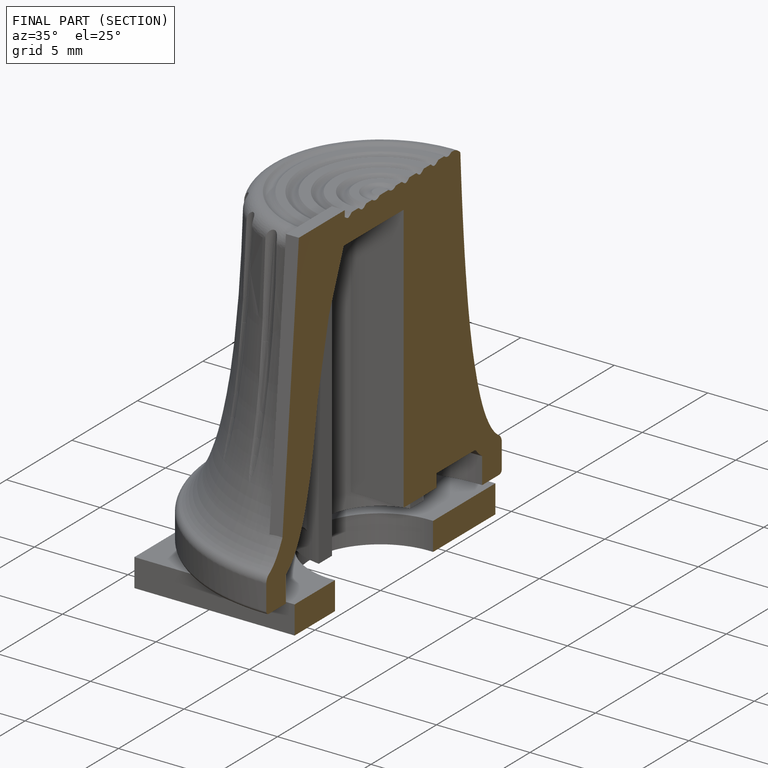
[diagram: finished part — half-section view (interior)]
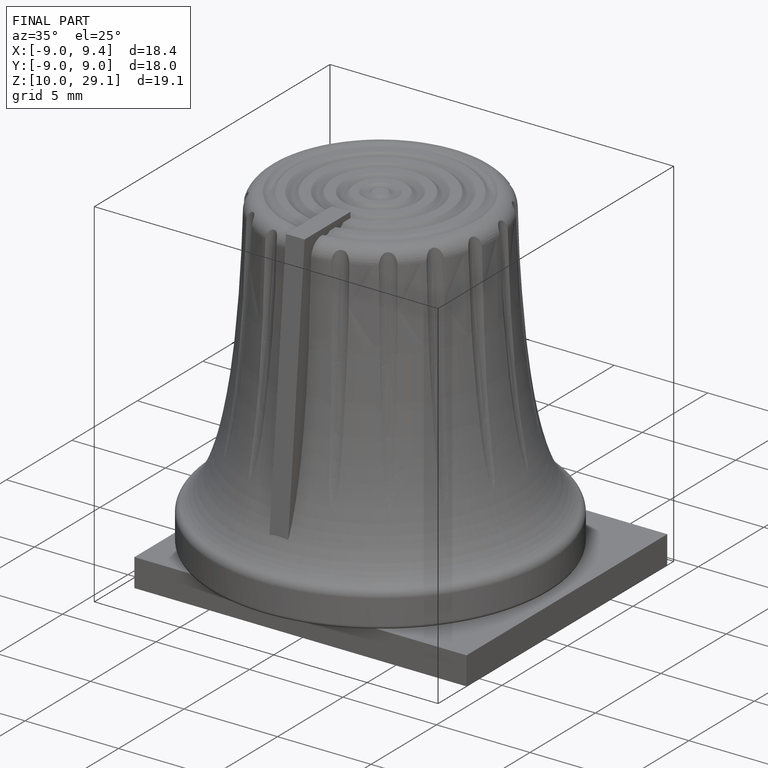
[diagram: finished part — iso view with bounding-box wireframe]
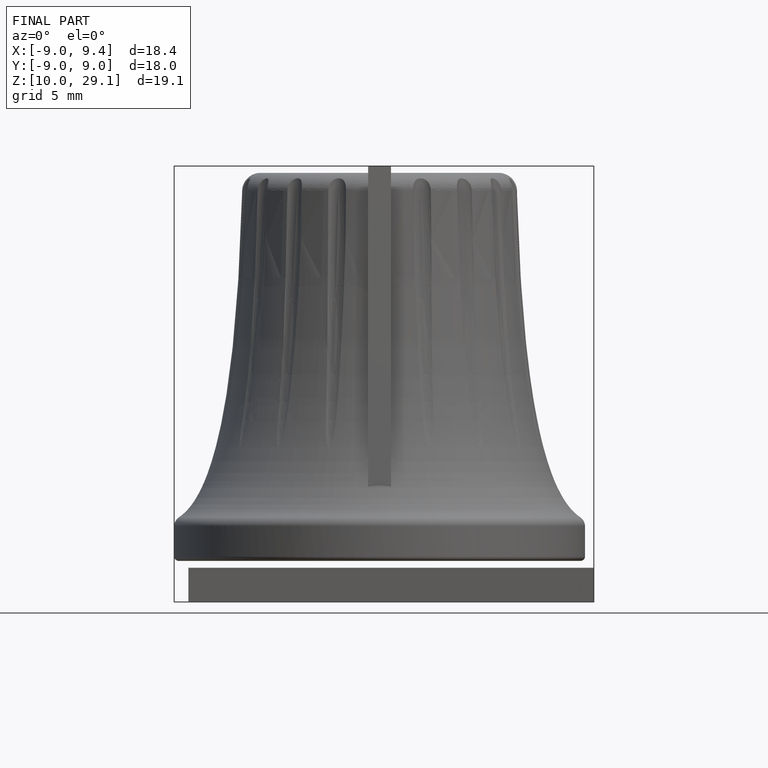
[diagram: finished part — front view with bounding-box wireframe]
